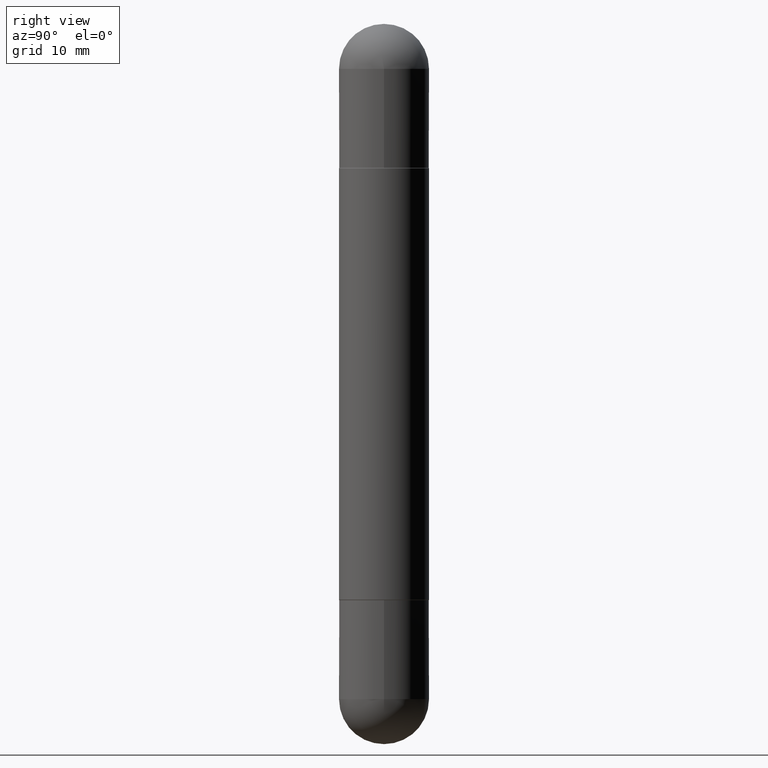
[diagram: clean part render]
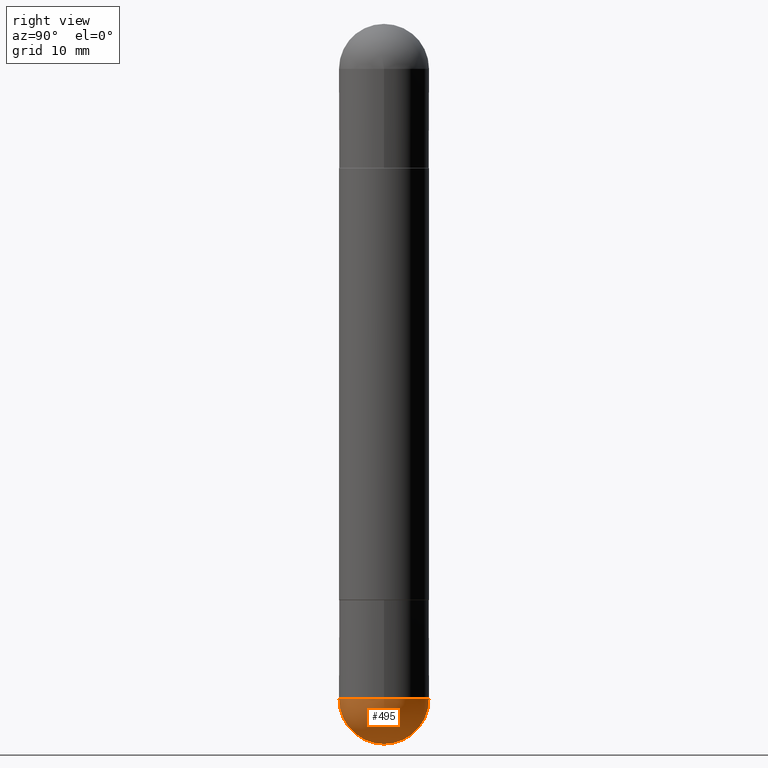
[diagram: same view with one face highlighted and labeled with its STEP entity id]
A machine part, right view. The second image highlights one B-rep face of the part: STEP entity #495.
In plain terms, the highlighted spherical surface has radius 3.9688 mm.
Its self-contained STEP definition (entity closure, byte-faithful):
#9 = AXIS2_PLACEMENT_3D ( 'NONE', #92, #533, #404 ) ;
#15 = DIRECTION ( 'NONE',  ( -1.000000000000000000, 7.105427357601001070E-15, -4.926315508542082329E-29 ) ) ;
#37 = DIRECTION ( 'NONE',  ( -2.445468806185136597E-29, 3.491481338843145583E-15, 1.000000000000000000 ) ) ;
#42 = EDGE_CURVE ( 'NONE', #206, #325, #124, .T. ) ;
#66 = VERTEX_POINT ( 'NONE', #401 ) ;
#89 = CARTESIAN_POINT ( 'NONE',  ( 5.400447736582527652E-29, -8.657341756053672891E-15, -2.343750000000000000 ) ) ;
#91 = AXIS2_PLACEMENT_3D ( 'NONE', #595, #337, #649 ) ;
#92 = CARTESIAN_POINT ( 'NONE',  ( 5.400447736582527652E-29, -8.657341756053672891E-15, -2.343750000000000000 ) ) ;
#100 = CIRCLE ( 'NONE', #209, 0.1562500000000000000 ) ;
#124 = CIRCLE ( 'NONE', #236, 0.1562500000000002498 ) ;
#206 = VERTEX_POINT ( 'NONE', #602 ) ;
#209 = AXIS2_PLACEMENT_3D ( 'NONE', #818, #446, #309 ) ;
#232 = DIRECTION ( 'NONE',  ( 1.000000000000000000, -6.982962677686262766E-15, 0.000000000000000000 ) ) ;
#236 = AXIS2_PLACEMENT_3D ( 'NONE', #89, #15, #283 ) ;
#283 = DIRECTION ( 'NONE',  ( -7.105427357601000281E-15, -1.000000000000000000, 0.000000000000000000 ) ) ;
#296 = CIRCLE ( 'NONE', #390, 0.1562500000000000000 ) ;
#309 = DIRECTION ( 'NONE',  ( 1.000000000000000000, -6.982962677686262766E-15, 0.000000000000000000 ) ) ;
#325 = VERTEX_POINT ( 'NONE', #430 ) ;
#328 = CIRCLE ( 'NONE', #9, 0.1562500000000002498 ) ;
#331 = EDGE_LOOP ( 'NONE', ( #426, #757, #700, #815 ) ) ;
#337 = DIRECTION ( 'NONE',  ( -1.000000000000000000, 6.982962677686265922E-15, -4.883557194083112340E-29 ) ) ;
#339 = EDGE_CURVE ( 'NONE', #325, #438, #100, .T. ) ;
#390 = AXIS2_PLACEMENT_3D ( 'NONE', #739, #37, #232 ) ;
#401 = CARTESIAN_POINT ( 'NONE',  ( 1.091087918388535577E-15, 0.1562499999999916733, -2.343750000000000444 ) ) ;
#404 = DIRECTION ( 'NONE',  ( 6.982962677686265922E-15, 1.000000000000000000, 0.000000000000000000 ) ) ;
#426 = ORIENTED_EDGE ( 'NONE', *, *, #42, .F. ) ;
#430 = CARTESIAN_POINT ( 'NONE',  ( -1.110223024625101517E-15, -0.1562500000000085487, -2.343749999999999556 ) ) ;
#438 = VERTEX_POINT ( 'NONE', #567 ) ;
#446 = DIRECTION ( 'NONE',  ( -2.445468806185136597E-29, 3.491481338843145583E-15, 1.000000000000000000 ) ) ;
#458 = FACE_OUTER_BOUND ( 'NONE', #331, .T. ) ;
#486 = EDGE_CURVE ( 'NONE', #206, #66, #328, .T. ) ;
#495 = ADVANCED_FACE ( 'NONE', ( #458 ), #527, .T. ) ;
#527 = SPHERICAL_SURFACE ( 'NONE', #91, 0.1562500000000002498 ) ;
#533 = DIRECTION ( 'NONE',  ( 1.000000000000000000, -6.982962677686265922E-15, 4.883557194083112340E-29 ) ) ;
#567 = CARTESIAN_POINT ( 'NONE',  ( 0.1562500000000000000, -8.674148951188436448E-15, -2.343750000000000000 ) ) ;
#595 = CARTESIAN_POINT ( 'NONE',  ( 5.400447736582527652E-29, -8.657341756053672891E-15, -2.343750000000000000 ) ) ;
#602 = CARTESIAN_POINT ( 'NONE',  ( 5.789233224183170584E-29, -9.193318162129576161E-15, -2.500000000000000000 ) ) ;
#649 = DIRECTION ( 'NONE',  ( 6.982962677686265922E-15, 1.000000000000000000, -3.496765431890251398E-15 ) ) ;
#700 = ORIENTED_EDGE ( 'NONE', *, *, #741, .F. ) ;
#739 = CARTESIAN_POINT ( 'NONE',  ( 5.731567514496413899E-29, -8.183159387913622595E-15, -2.343750000000000000 ) ) ;
#741 = EDGE_CURVE ( 'NONE', #438, #66, #296, .T. ) ;
#757 = ORIENTED_EDGE ( 'NONE', *, *, #486, .T. ) ;
#815 = ORIENTED_EDGE ( 'NONE', *, *, #339, .F. ) ;
#818 = CARTESIAN_POINT ( 'NONE',  ( 5.731567514496413899E-29, -8.183159387913622595E-15, -2.343750000000000000 ) ) ;